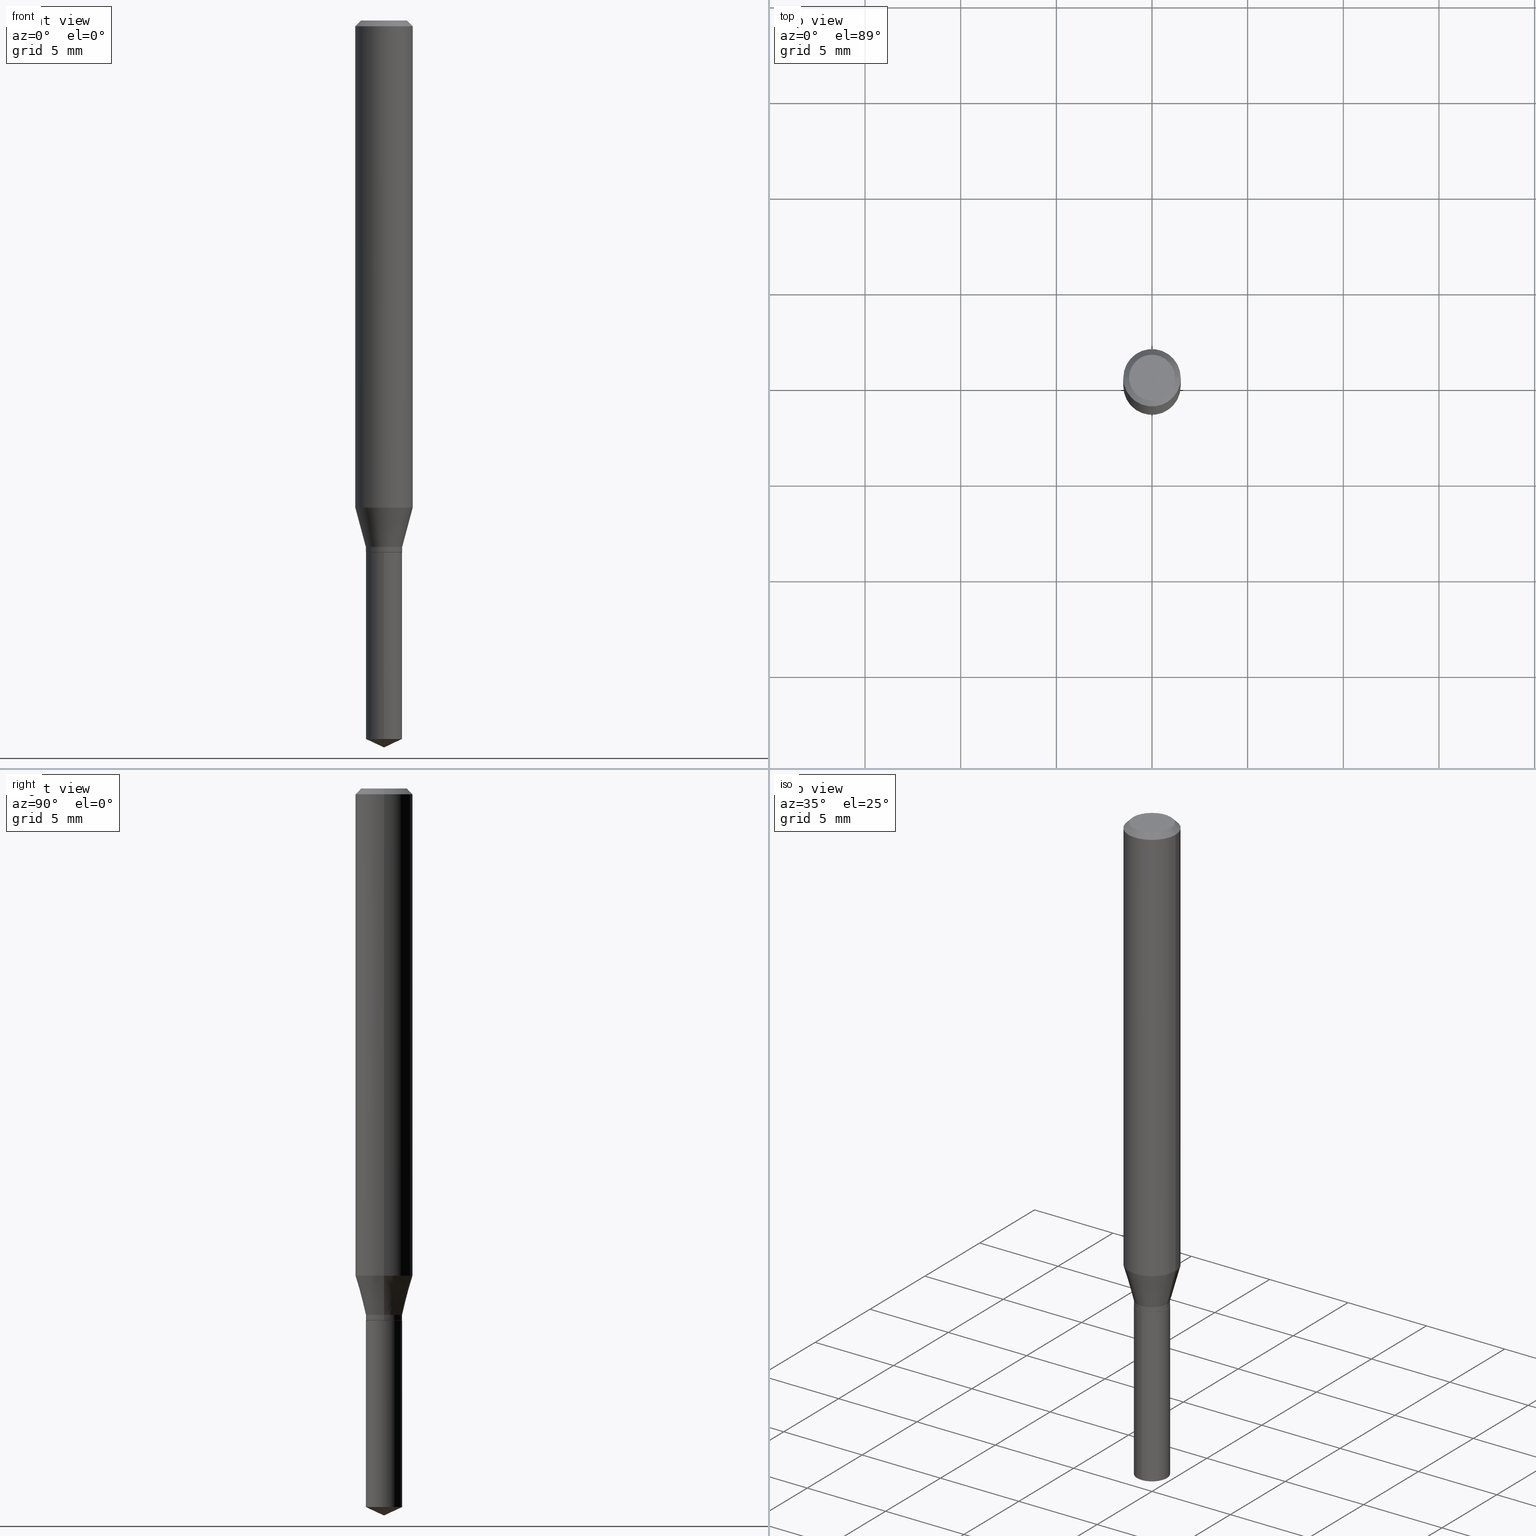
[diagram: canonical four-view strip — front | top / right | iso, engineering-drawing reading convention]
A machine part, canonical four-view strip (front | top / right | iso — engineering-drawing reading convention). The complete STEP part file that produces these views, byte-faithful:
ISO-10303-21;
HEADER;
FILE_DESCRIPTION (( 'STEP AP203' ),
    '1' );
FILE_NAME ('08182.STEP',
    '2024-04-24T13:43:57',
    ( '' ),
    ( '' ),
    'SwSTEP 2.0',
    'SolidWorks 2023',
    '' );
FILE_SCHEMA (( 'CONFIG_CONTROL_DESIGN' ));
ENDSEC;

DATA;
#1 = ORIENTED_EDGE ( 'NONE', *, *, #441, .F. ) ;
#2 = CONICAL_SURFACE ( 'NONE', #283, 84.42940631927567097, 1.134464013796322002 ) ;
#3 = CIRCLE ( 'NONE', #302, 0.03739999999999995411 ) ;
#4 = DIRECTION ( 'NONE',  ( -2.445358326776455510E-29, 3.491639551644474585E-15, 1.000000000000000000 ) ) ;
#5 = CARTESIAN_POINT ( 'NONE',  ( 2.888098660104663328E-31, -4.123439461173779030E-17, -0.01181000000000006871 ) ) ;
#6 = FACE_OUTER_BOUND ( 'NONE', #238, .T. ) ;
#7 = ORIENTED_EDGE ( 'NONE', *, *, #425, .F. ) ;
#8 = CARTESIAN_POINT ( 'NONE',  ( 0.000000000000000000, 0.000000000000000000, 0.000000000000000000 ) ) ;
#9 = CARTESIAN_POINT ( 'NONE',  ( 0.03739999999999995411, -4.043484538514245916E-15, -1.083299999999999930 ) ) ;
#10 = LINE ( 'NONE', #165, #34 ) ;
#11 = CARTESIAN_POINT ( 'NONE',  ( 2.676565608369631794E-29, -3.821426325363822773E-15, -1.094499999999999806 ) ) ;
#12 = FACE_OUTER_BOUND ( 'NONE', #478, .T. ) ;
#13 = PRODUCT ( '08182', '08182', '', ( #357 ) ) ;
#14 = CARTESIAN_POINT ( 'NONE',  ( 2.657429831743042113E-16, 0.03739999999999617936, -1.094500000000000028 ) ) ;
#15 = DIRECTION ( 'NONE',  ( -2.445468806185136597E-29, 3.491481338843145583E-15, 1.000000000000000000 ) ) ;
#16 = AXIS2_PLACEMENT_3D ( 'NONE', #272, #163, #383 ) ;
#17 = CONICAL_SURFACE ( 'NONE', #396, 0.03690000000000000224, 0.7853981633973757814 ) ;
#18 = EDGE_CURVE ( 'NONE', #371, #471, #290, .T. ) ;
#19 = MANIFOLD_SOLID_BREP ( 'Body-Move/Copy2[1]', #126 ) ;
#20 = CARTESIAN_POINT ( 'NONE',  ( -0.03739999999999996799, -3.535258176357312608E-15, -1.093999999999999861 ) ) ;
#21 = DIRECTION ( 'NONE',  ( -1.000000000000000000, 6.982962677686265922E-15, -4.876176775795935793E-29 ) ) ;
#22 = ADVANCED_FACE ( 'NONE', ( #12 ), #274, .T. ) ;
#23 = CONICAL_SURFACE ( 'NONE', #294, 0.03739999999999995411, 0.2617993877991501295 ) ;
#24 = PRODUCT_DEFINITION_FORMATION_WITH_SPECIFIED_SOURCE ( 'ANY', '', #13, .NOT_KNOWN. ) ;
#25 = CARTESIAN_POINT ( 'NONE',  ( 3.658500592690254185E-29, -5.223841933215297403E-15, -1.496099999999999985 ) ) ;
#26 = PERSON_AND_ORGANIZATION_ROLE ( 'creator' ) ;
#27 = ADVANCED_FACE ( 'NONE', ( #417 ), #85, .F. ) ;
#28 = ORIENTED_EDGE ( 'NONE', *, *, #271, .F. ) ;
#29 = AXIS2_PLACEMENT_3D ( 'NONE', #457, #460, #100 ) ;
#30 = VECTOR ( 'NONE', #178, 39.37007874015748143 ) ;
#31 = ORIENTED_EDGE ( 'NONE', *, *, #461, .T. ) ;
#32 = EDGE_CURVE ( 'NONE', #241, #113, #482, .T. ) ;
#33 = APPROVAL_ROLE ( '' ) ;
#34 = VECTOR ( 'NONE', #125, 39.37007874015747433 ) ;
#35 = CIRCLE ( 'NONE', #261, 0.05904999999999999832 ) ;
#36 = CALENDAR_DATE ( 2024, 24, 4 ) ;
#37 = ORIENTED_EDGE ( 'NONE', *, *, #18, .T. ) ;
#38 = CARTESIAN_POINT ( 'NONE',  ( -0.05905000000000013016, -3.080638397409715061E-15, -1.002501100016133240 ) ) ;
#39 = DIRECTION ( 'NONE',  ( 2.445358326776454949E-29, -3.491639551644474585E-15, -1.000000000000000000 ) ) ;
#40 = DIRECTION ( 'NONE',  ( 1.000000000000000000, -6.982962677686265133E-15, 0.000000000000000000 ) ) ;
#41 = CARTESIAN_POINT ( 'NONE',  ( 3.658744552762151624E-29, -5.223495605393188568E-15, -1.496099999999999985 ) ) ;
#42 = AXIS2_PLACEMENT_3D ( 'NONE', #116, #273, #412 ) ;
#43 = DIRECTION ( 'NONE',  ( -2.445468806185136597E-29, 3.491481338843145583E-15, 1.000000000000000000 ) ) ;
#44 = ORIENTED_EDGE ( 'NONE', *, *, #32, .T. ) ;
#45 = DIRECTION ( 'NONE',  ( -2.445358326776455510E-29, 3.491639551644474585E-15, 1.000000000000000000 ) ) ;
#46 = DIRECTION ( 'NONE',  ( -2.445468806185136597E-29, 3.491481338843145583E-15, 1.000000000000000000 ) ) ;
#47 = CARTESIAN_POINT ( 'NONE',  ( 2.676565608369631794E-29, -3.821426325363822773E-15, -1.094499999999999806 ) ) ;
#48 = LINE ( 'NONE', #458, #439 ) ;
#49 = EDGE_LOOP ( 'NONE', ( #75, #472, #61, #118 ) ) ;
#50 = ORIENTED_EDGE ( 'NONE', *, *, #64, .T. ) ;
#51 = CC_DESIGN_DATE_AND_TIME_ASSIGNMENT ( #183, #367, ( #420 ) ) ;
#52 = DIRECTION ( 'NONE',  ( -6.982962677686265922E-15, -1.000000000000000000, 3.652203200085913145E-15 ) ) ;
#53 = PRODUCT_DEFINITION_SHAPE ( 'NONE', 'NONE',  #77 ) ;
#54 = DIRECTION ( 'NONE',  ( -2.445468806185136597E-29, 3.491481338843145583E-15, 1.000000000000000000 ) ) ;
#55 = AXIS2_PLACEMENT_3D ( 'NONE', #210, #46, #235 ) ;
#56 = ORIENTED_EDGE ( 'NONE', *, *, #262, .F. ) ;
#57 = CIRCLE ( 'NONE', #158, 0.03740000000000000269 ) ;
#58 = LINE ( 'NONE', #399, #30 ) ;
#59 = DIRECTION ( 'NONE',  ( 0.000000000000000000, 0.000000000000000000, 1.000000000000000000 ) ) ;
#60 = PLANE ( 'NONE',  #67 ) ;
#61 = ORIENTED_EDGE ( 'NONE', *, *, #430, .F. ) ;
#62 = FACE_OUTER_BOUND ( 'NONE', #442, .T. ) ;
#63 = CARTESIAN_POINT ( 'NONE',  ( 0.04724000000000000421, -3.852183633974369345E-16, -3.380025165621689721E-19 ) ) ;
#64 = EDGE_CURVE ( 'NONE', #246, #375, #121, .T. ) ;
#65 = ORIENTED_EDGE ( 'NONE', *, *, #69, .T. ) ;
#66 = ORIENTED_EDGE ( 'NONE', *, *, #405, .F. ) ;
#67 = AXIS2_PLACEMENT_3D ( 'NONE', #92, #103, #21 ) ;
#68 = PERSON_AND_ORGANIZATION_ROLE ( 'creator' ) ;
#69 = EDGE_CURVE ( 'NONE', #448, #185, #427, .T. ) ;
#70 = FACE_OUTER_BOUND ( 'NONE', #157, .T. ) ;
#71 = PERSON_AND_ORGANIZATION_ROLE ( 'design_owner' ) ;
#72 = ORIENTED_EDGE ( 'NONE', *, *, #87, .F. ) ;
#73 = LOCAL_TIME ( 9, 43, 57.00000000000000000, #331 ) ;
#74 = EDGE_CURVE ( 'NONE', #308, #394, #253, .T. ) ;
#75 = ORIENTED_EDGE ( 'NONE', *, *, #177, .T. ) ;
#76 = DIRECTION ( 'NONE',  ( -1.000000000000000000, 6.982962677686266711E-15, 0.000000000000000000 ) ) ;
#77 = PRODUCT_DEFINITION ( 'UNKNOWN', '', #24, #168 ) ;
#78 = CYLINDRICAL_SURFACE ( 'NONE', #364, 0.03739999999999996105 ) ;
#79 = DIRECTION ( 'NONE',  ( -2.445358326776455790E-29, 3.491639551644474585E-15, 1.000000000000000000 ) ) ;
#80 = CARTESIAN_POINT ( 'NONE',  ( -2.611628041454301126E-16, -0.03740000000000516522, -1.478660093585003388 ) ) ;
#81 = CARTESIAN_POINT ( 'NONE',  ( 0.03739999999999995411, -4.043484538514245916E-15, -1.083299999999999930 ) ) ;
#82 = VECTOR ( 'NONE', #409, 39.37007874015748143 ) ;
#83 = CIRCLE ( 'NONE', #446, 0.03690000000000000224 ) ;
#84 = CARTESIAN_POINT ( 'NONE',  ( 2.649176357740358198E-29, -3.782321734368779516E-15, -1.083299999999999930 ) ) ;
#85 = PLANE ( 'NONE',  #189 ) ;
#86 = CARTESIAN_POINT ( 'NONE',  ( -0.04724000000000000421, 3.504923541997677355E-16, -3.380025165670481712E-19 ) ) ;
#87 = EDGE_CURVE ( 'NONE', #466, #469, #236, .T. ) ;
#88 = DIRECTION ( 'NONE',  ( 1.000000000000000000, -6.982962677686261189E-15, 0.000000000000000000 ) ) ;
#89 = DIRECTION ( 'NONE',  ( -2.445468806185136597E-29, 3.491481338843145583E-15, 1.000000000000000000 ) ) ;
#90 = CARTESIAN_POINT ( 'NONE',  ( 2.676565608369631794E-29, -3.821426325363822773E-15, -1.094499999999999806 ) ) ;
#91 = VERTEX_POINT ( 'NONE', #81 ) ;
#92 = CARTESIAN_POINT ( 'NONE',  ( 4.132873053354867254E-48, -5.900647395337818946E-34, -1.690012582823346072E-19 ) ) ;
#93 = VECTOR ( 'NONE', #200, 39.37007874015748143 ) ;
#94 = AXIS2_PLACEMENT_3D ( 'NONE', #392, #59, #217 ) ;
#95 = ORIENTED_EDGE ( 'NONE', *, *, #366, .F. ) ;
#96 = CARTESIAN_POINT ( 'NONE',  ( 0.05905000000000013016, -3.912557828993430263E-15, -1.002501100016133240 ) ) ;
#97 = ORIENTED_EDGE ( 'NONE', *, *, #64, .F. ) ;
#98 = ADVANCED_FACE ( 'NONE', ( #381 ), #2, .T. ) ;
#99 = CARTESIAN_POINT ( 'NONE',  ( 2.888098660104663328E-31, -4.123439461173779030E-17, -0.01181000000000006871 ) ) ;
#100 = DIRECTION ( 'NONE',  ( 1.000000000000000000, -6.982962677686270655E-15, 0.000000000000000000 ) ) ;
#101 = VECTOR ( 'NONE', #452, 39.37007874015748143 ) ;
#102 = ADVANCED_FACE ( 'NONE', ( #403 ), #344, .F. ) ;
#103 = DIRECTION ( 'NONE',  ( 2.438088387897960049E-29, -3.491481338843145188E-15, -1.000000000000000000 ) ) ;
#104 = ORIENTED_EDGE ( 'NONE', *, *, #360, .F. ) ;
#105 = PERSON_AND_ORGANIZATION ( #411, #199 ) ;
#106 = ORIENTED_EDGE ( 'NONE', *, *, #313, .F. ) ;
#107 = PERSON_AND_ORGANIZATION ( #411, #199 ) ;
#108 = ADVANCED_FACE ( 'NONE', ( #204 ), #211, .T. ) ;
#109 = DIRECTION ( 'NONE',  ( -6.982962677686267499E-15, -1.000000000000000000, 3.520397390770398255E-15 ) ) ;
#110 = APPROVAL_PERSON_ORGANIZATION ( #325, #323, #33 ) ;
#111 = DIRECTION ( 'NONE',  ( -2.445468806185136597E-29, 3.491481338843145583E-15, 1.000000000000000000 ) ) ;
#112 = APPROVAL_STATUS ( 'not_yet_approved' ) ;
#113 = VERTEX_POINT ( 'NONE', #244 ) ;
#114 = AXIS2_PLACEMENT_3D ( 'NONE', #8, #334, #490 ) ;
#115 = ORIENTED_EDGE ( 'NONE', *, *, #425, .T. ) ;
#116 = CARTESIAN_POINT ( 'NONE',  ( 3.615974692032942336E-29, -5.162774902288663749E-15, -1.478660093585003388 ) ) ;
#117 = FACE_OUTER_BOUND ( 'NONE', #160, .T. ) ;
#118 = ORIENTED_EDGE ( 'NONE', *, *, #461, .F. ) ;
#119 = DIRECTION ( 'NONE',  ( -2.445468806185136597E-29, 3.491481338843145583E-15, 1.000000000000000000 ) ) ;
#120 = FACE_OUTER_BOUND ( 'NONE', #474, .T. ) ;
#121 = LINE ( 'NONE', #413, #355 ) ;
#122 = EDGE_CURVE ( 'NONE', #139, #371, #10, .T. ) ;
#123 = CYLINDRICAL_SURFACE ( 'NONE', #329, 0.05905000000000006771 ) ;
#124 = EDGE_LOOP ( 'NONE', ( #182, #320 ) ) ;
#125 = DIRECTION ( 'NONE',  ( -0.2588190451025214611, 5.211531920934551042E-15, 0.9659258262890682012 ) ) ;
#126 = CLOSED_SHELL ( 'NONE', ( #362, #98, #214, #22, #27 ) ) ;
#127 = AXIS2_PLACEMENT_3D ( 'NONE', #424, #237, #205 ) ;
#128 = CARTESIAN_POINT ( 'NONE',  ( 8.265746106709734507E-48, -1.180129479067563789E-33, -3.380025165646692144E-19 ) ) ;
#129 = DIRECTION ( 'NONE',  ( -6.982962677686265922E-15, -1.000000000000000000, 0.000000000000000000 ) ) ;
#130 = CARTESIAN_POINT ( 'NONE',  ( 0.000000000000000000, 0.000000000000000000, 0.000000000000000000 ) ) ;
#131 = CARTESIAN_POINT ( 'NONE',  ( 2.676565608369631794E-29, -3.821426325363822773E-15, -1.094499999999999806 ) ) ;
#132 = CC_DESIGN_PERSON_AND_ORGANIZATION_ASSIGNMENT ( #153, #68, ( #77 ) ) ;
#133 = CIRCLE ( 'NONE', #464, 0.03740000000000000269 ) ;
#134 = ADVANCED_BREP_SHAPE_REPRESENTATION ( '08182', ( #19, #169, #94 ), #340 ) ;
#135 = DIRECTION ( 'NONE',  ( -2.445468806185136877E-29, 3.491481338843145188E-15, 1.000000000000000000 ) ) ;
#136 = ORIENTED_EDGE ( 'NONE', *, *, #345, .T. ) ;
#137 = CARTESIAN_POINT ( 'NONE',  ( -0.05905000000000006771, 4.195754854663396409E-16, -2.904631170795525045E-30 ) ) ;
#138 = ADVANCED_FACE ( 'NONE', ( #380 ), #176, .T. ) ;
#139 = VERTEX_POINT ( 'NONE', #174 ) ;
#140 = DIRECTION ( 'NONE',  ( 1.000000000000000000, -6.982962677686261189E-15, 0.000000000000000000 ) ) ;
#141 = CONICAL_SURFACE ( 'NONE', #250, 84.42940631927567097, 1.134464013796322002 ) ;
#142 = AXIS2_PLACEMENT_3D ( 'NONE', #128, #155, #447 ) ;
#143 = DATE_AND_TIME ( #223, #171 ) ;
#144 = VERTEX_POINT ( 'NONE', #207 ) ;
#145 = ORIENTED_EDGE ( 'NONE', *, *, #345, .F. ) ;
#146 = APPROVAL_DATE_TIME ( #298, #372 ) ;
#147 = CONICAL_SURFACE ( 'NONE', #148, 0.05904999999999999832, 0.7853981633974452814 ) ;
#148 = AXIS2_PLACEMENT_3D ( 'NONE', #208, #422, #314 ) ;
#149 = PERSON_AND_ORGANIZATION_ROLE ( 'design_supplier' ) ;
#150 = ORIENTED_EDGE ( 'NONE', *, *, #177, .F. ) ;
#151 = APPLICATION_CONTEXT ( 'configuration controlled 3d designs of mechanical parts and assemblies' ) ;
#152 = ORIENTED_EDGE ( 'NONE', *, *, #259, .F. ) ;
#153 = PERSON_AND_ORGANIZATION ( #411, #199 ) ;
#154 = ORIENTED_EDGE ( 'NONE', *, *, #430, .T. ) ;
#155 = DIRECTION ( 'NONE',  ( -2.445468806185136597E-29, 3.491481338843145583E-15, 1.000000000000000000 ) ) ;
#156 = CLOSED_SHELL ( 'NONE', ( #108, #263, #138, #284, #227, #356, #327, #352, #295, #481, #102, #463 ) ) ;
#157 = EDGE_LOOP ( 'NONE', ( #202, #401, #154, #1 ) ) ;
#158 = AXIS2_PLACEMENT_3D ( 'NONE', #376, #201, #346 ) ;
#159 = CARTESIAN_POINT ( 'NONE',  ( 2.657429831743136776E-16, 0.03739999999999617936, -1.094500000000000028 ) ) ;
#160 = EDGE_LOOP ( 'NONE', ( #436, #181, #7, #145 ) ) ;
#161 = LINE ( 'NONE', #9, #300 ) ;
#162 = FACE_OUTER_BOUND ( 'NONE', #322, .T. ) ;
#163 = DIRECTION ( 'NONE',  ( -2.445468806185136597E-29, 3.491481338843145583E-15, 1.000000000000000000 ) ) ;
#164 = DIRECTION ( 'NONE',  ( 0.2588190451025214611, 1.565188264969621573E-15, 0.9659258262890682012 ) ) ;
#165 = CARTESIAN_POINT ( 'NONE',  ( -0.03739999999999995411, -3.516578751194502126E-15, -1.083299999999999930 ) ) ;
#166 = DIRECTION ( 'NONE',  ( 1.000000000000000000, -6.982962677686266711E-15, 4.876176775795936353E-29 ) ) ;
#167 = DIRECTION ( 'NONE',  ( -2.445358326776455510E-29, 3.491639551644474585E-15, 1.000000000000000000 ) ) ;
#168 = DESIGN_CONTEXT ( 'detailed design', #151, 'design' ) ;
#169 = MANIFOLD_SOLID_BREP ( 'Body-Move/Copy2[2]', #156 ) ;
#170 = CIRCLE ( 'NONE', #267, 0.03740000000000000269 ) ;
#171 = LOCAL_TIME ( 9, 43, 57.00000000000000000, #440 ) ;
#172 = CARTESIAN_POINT ( 'NONE',  ( 2.675342873966538993E-29, -3.819680584694400481E-15, -1.093999999999999861 ) ) ;
#173 = ORIENTED_EDGE ( 'NONE', *, *, #271, .T. ) ;
#174 = CARTESIAN_POINT ( 'NONE',  ( -0.03739999999999995411, -3.535258176357312608E-15, -1.083299999999999930 ) ) ;
#175 = CARTESIAN_POINT ( 'NONE',  ( -0.03690000000000000224, -3.556586828694234292E-15, -1.094499999999999806 ) ) ;
#176 = CYLINDRICAL_SURFACE ( 'NONE', #55, 0.05905000000000006771 ) ;
#177 = EDGE_CURVE ( 'NONE', #471, #371, #324, .T. ) ;
#178 = DIRECTION ( 'NONE',  ( -2.445468806185136877E-29, 3.491481338843145188E-15, 1.000000000000000000 ) ) ;
#179 = ORIENTED_EDGE ( 'NONE', *, *, #360, .T. ) ;
#180 = EDGE_LOOP ( 'NONE', ( #66, #37, #31, #365 ) ) ;
#181 = ORIENTED_EDGE ( 'NONE', *, *, #397, .T. ) ;
#182 = ORIENTED_EDGE ( 'NONE', *, *, #74, .F. ) ;
#183 = DATE_AND_TIME ( #400, #73 ) ;
#184 = AXIS2_PLACEMENT_3D ( 'NONE', #449, #119, #415 ) ;
#185 = VERTEX_POINT ( 'NONE', #86 ) ;
#186 = PERSON_AND_ORGANIZATION_ROLE ( 'classification_officer' ) ;
#187 = LINE ( 'NONE', #14, #317 ) ;
#188 = CARTESIAN_POINT ( 'NONE',  ( -9.261532836068574158E-28, 1.322424553111868898E-13, 37.87397874015748300 ) ) ;
#189 = AXIS2_PLACEMENT_3D ( 'NONE', #233, #39, #338 ) ;
#190 = VECTOR ( 'NONE', #398, 39.37007874015748143 ) ;
#191 = APPROVAL_DATE_TIME ( #404, #304 ) ;
#192 = EDGE_CURVE ( 'NONE', #91, #471, #161, .T. ) ;
#193 = ORIENTED_EDGE ( 'NONE', *, *, #441, .T. ) ;
#194 = CARTESIAN_POINT ( 'NONE',  ( 3.615974692032942336E-29, -5.162774902288663749E-15, -1.478660093585003388 ) ) ;
#195 = CARTESIAN_POINT ( 'NONE',  ( -0.03690000000000000224, -3.559236055868345493E-15, -1.094499999999999806 ) ) ;
#196 = EDGE_LOOP ( 'NONE', ( #419, #257, #193, #44 ) ) ;
#197 = AXIS2_PLACEMENT_3D ( 'NONE', #382, #270, #76 ) ;
#198 = CC_DESIGN_PERSON_AND_ORGANIZATION_ASSIGNMENT ( #107, #149, ( #24 ) ) ;
#199 = ORGANIZATION ( 'UNSPECIFIED', 'UNSPECIFIED', '' ) ;
#200 = DIRECTION ( 'NONE',  ( 6.439704144417047708E-15, 0.9063077870366545996, 0.4226182617406892827 ) ) ;
#201 = DIRECTION ( 'NONE',  ( -2.445358326776455510E-29, 3.491639551644474585E-15, 1.000000000000000000 ) ) ;
#202 = ORIENTED_EDGE ( 'NONE', *, *, #69, .F. ) ;
#203 = CYLINDRICAL_SURFACE ( 'NONE', #114, 0.03739999999999996105 ) ;
#204 = FACE_OUTER_BOUND ( 'NONE', #316, .T. ) ;
#205 = DIRECTION ( 'NONE',  ( -6.982962677686265922E-15, -1.000000000000000000, 3.652203200085913145E-15 ) ) ;
#206 = ORIENTED_EDGE ( 'NONE', *, *, #216, .F. ) ;
#207 = CARTESIAN_POINT ( 'NONE',  ( 0.03739999999999996105, -4.080843388839866881E-15, -1.093999999999999861 ) ) ;
#208 = CARTESIAN_POINT ( 'NONE',  ( 2.888098660104663328E-31, -4.123439461173779030E-17, -0.01181000000000006871 ) ) ;
#209 = ORIENTED_EDGE ( 'NONE', *, *, #87, .T. ) ;
#210 = CARTESIAN_POINT ( 'NONE',  ( 0.000000000000000000, 0.000000000000000000, 0.000000000000000000 ) ) ;
#211 = CONICAL_SURFACE ( 'NONE', #348, 0.03690000000000000224, 0.7853981633973757814 ) ;
#212 = LOCAL_TIME ( 9, 43, 57.00000000000000000, #363 ) ;
#213 = DIRECTION ( 'NONE',  ( -2.445468806185136597E-29, 3.491481338843145583E-15, 1.000000000000000000 ) ) ;
#214 = ADVANCED_FACE ( 'NONE', ( #309 ), #141, .T. ) ;
#215 = LENGTH_MEASURE_WITH_UNIT ( LENGTH_MEASURE( 0.02539999999999999897 ), #254 );
#216 = EDGE_CURVE ( 'NONE', #469, #285, #187, .T. ) ;
#217 = DIRECTION ( 'NONE',  ( 1.000000000000000000, 0.000000000000000000, 0.000000000000000000 ) ) ;
#218 = EDGE_CURVE ( 'NONE', #469, #246, #170, .T. ) ;
#219 = FACE_OUTER_BOUND ( 'NONE', #330, .T. ) ;
#220 = VECTOR ( 'NONE', #135, 39.37007874015748143 ) ;
#221 = DIRECTION ( 'NONE',  ( -2.445468806185136597E-29, 3.491481338843145583E-15, 1.000000000000000000 ) ) ;
#222 = PERSON_AND_ORGANIZATION ( #411, #199 ) ;
#223 = CALENDAR_DATE ( 2024, 24, 4 ) ;
#224 = AXIS2_PLACEMENT_3D ( 'NONE', #488, #111, #297 ) ;
#225 = ORIENTED_EDGE ( 'NONE', *, *, #192, .F. ) ;
#226 = SECURITY_CLASSIFICATION_LEVEL ( 'unclassified' ) ;
#227 = ADVANCED_FACE ( 'NONE', ( #117 ), #203, .T. ) ;
#228 = COORDINATED_UNIVERSAL_TIME_OFFSET ( 5, 0, .BEHIND. ) ;
#229 = CC_DESIGN_PERSON_AND_ORGANIZATION_ASSIGNMENT ( #435, #71, ( #13 ) ) ;
#230 = PERSON_AND_ORGANIZATION ( #411, #199 ) ;
#231 = ORIENTED_EDGE ( 'NONE', *, *, #192, .T. ) ;
#232 = DIRECTION ( 'NONE',  ( -2.445468806185136877E-29, 3.491481338843145188E-15, 1.000000000000000000 ) ) ;
#233 = CARTESIAN_POINT ( 'NONE',  ( 2.676565608369631794E-29, -3.821426325363822773E-15, -1.094499999999999806 ) ) ;
#234 = CC_DESIGN_PERSON_AND_ORGANIZATION_ASSIGNMENT ( #105, #26, ( #24 ) ) ;
#235 = DIRECTION ( 'NONE',  ( 1.000000000000000000, -6.982962677686266711E-15, 4.876176775795936353E-29 ) ) ;
#236 = LINE ( 'NONE', #41, #93 ) ;
#237 = DIRECTION ( 'NONE',  ( -2.445358326776455510E-29, 3.491639551644474585E-15, 1.000000000000000000 ) ) ;
#238 = EDGE_LOOP ( 'NONE', ( #423, #386, #136, #56 ) ) ;
#239 = VECTOR ( 'NONE', #350, 39.37007874015748143 ) ;
#240 = LINE ( 'NONE', #195, #251 ) ;
#241 = VERTEX_POINT ( 'NONE', #301 ) ;
#242 = UNCERTAINTY_MEASURE_WITH_UNIT (LENGTH_MEASURE( 1.000000000000000082E-05 ), #256, 'distance_accuracy_value', 'NONE');
#243 = CARTESIAN_POINT ( 'NONE',  ( 2.451585168255739892E-29, -3.500213882876055342E-15, -1.002501100016133240 ) ) ;
#244 = CARTESIAN_POINT ( 'NONE',  ( 0.05904999999999999832, -4.535783407291118600E-16, -0.01181000000000006871 ) ) ;
#245 = CARTESIAN_POINT ( 'NONE',  ( 0.03690000000000000224, -4.079097648170445378E-15, -1.094499999999999806 ) ) ;
#246 = VERTEX_POINT ( 'NONE', #80 ) ;
#247 = PRODUCT_RELATED_PRODUCT_CATEGORY ( 'detail', '', ( #13 ) ) ;
#248 = CARTESIAN_POINT ( 'NONE',  ( 0.05904999999999999832, -4.463468013801466955E-16, -0.01181000000000006871 ) ) ;
#249 = ORIENTED_EDGE ( 'NONE', *, *, #262, .T. ) ;
#250 = AXIS2_PLACEMENT_3D ( 'NONE', #384, #480, #109 ) ;
#251 = VECTOR ( 'NONE', #337, 39.37007874015748143 ) ;
#252 = CC_DESIGN_PERSON_AND_ORGANIZATION_ASSIGNMENT ( #222, #186, ( #420 ) ) ;
#253 = CIRCLE ( 'NONE', #184, 0.03690000000000000224 ) ;
#254 =( LENGTH_UNIT ( ) NAMED_UNIT ( * ) SI_UNIT ( $, .METRE. ) );
#255 = AXIS2_PLACEMENT_3D ( 'NONE', #347, #305, #374 ) ;
#256 =( CONVERSION_BASED_UNIT ( 'INCH', #215 ) LENGTH_UNIT ( ) NAMED_UNIT ( #387 ) );
#257 = ORIENTED_EDGE ( 'NONE', *, *, #326, .F. ) ;
#258 = SHAPE_DEFINITION_REPRESENTATION ( #53, #134 ) ;
#259 = EDGE_CURVE ( 'NONE', #431, #144, #389, .T. ) ;
#260 = CIRCLE ( 'NONE', #377, 0.03739999999999996105 ) ;
#261 = AXIS2_PLACEMENT_3D ( 'NONE', #99, #470, #351 ) ;
#262 = EDGE_CURVE ( 'NONE', #139, #91, #445, .T. ) ;
#263 = ADVANCED_FACE ( 'NONE', ( #70 ), #402, .T. ) ;
#264 = DIRECTION ( 'NONE',  ( -2.445358326776455510E-29, 3.491639551644474585E-15, 1.000000000000000000 ) ) ;
#265 = COORDINATED_UNIVERSAL_TIME_OFFSET ( 5, 0, .BEHIND. ) ;
#266 = APPROVAL_ROLE ( '' ) ;
#267 = AXIS2_PLACEMENT_3D ( 'NONE', #194, #45, #129 ) ;
#268 = ORIENTED_EDGE ( 'NONE', *, *, #218, .T. ) ;
#269 = FACE_OUTER_BOUND ( 'NONE', #358, .T. ) ;
#270 = DIRECTION ( 'NONE',  ( 2.445468806185136597E-29, -3.491481338843145583E-15, -1.000000000000000000 ) ) ;
#271 = EDGE_CURVE ( 'NONE', #375, #285, #133, .T. ) ;
#272 = CARTESIAN_POINT ( 'NONE',  ( 2.451585168255739892E-29, -3.500213882876055342E-15, -1.002501100016133240 ) ) ;
#273 = DIRECTION ( 'NONE',  ( -2.445358326776455510E-29, 3.491639551644474585E-15, 1.000000000000000000 ) ) ;
#274 = CYLINDRICAL_SURFACE ( 'NONE', #395, 0.03740000000000000269 ) ;
#275 = DIRECTION ( 'NONE',  ( 1.000000000000000000, -6.982962677686269077E-15, 0.000000000000000000 ) ) ;
#276 = CIRCLE ( 'NONE', #42, 0.03740000000000000269 ) ;
#277 = DIRECTION ( 'NONE',  ( -2.445468806185136597E-29, 3.491481338843145583E-15, 1.000000000000000000 ) ) ;
#278 = FACE_OUTER_BOUND ( 'NONE', #180, .T. ) ;
#279 = CARTESIAN_POINT ( 'NONE',  ( 2.675342873966538993E-29, -3.819680584694400481E-15, -1.093999999999999861 ) ) ;
#280 = EDGE_CURVE ( 'NONE', #144, #431, #260, .T. ) ;
#281 = DIRECTION ( 'NONE',  ( 1.000000000000000000, -6.982962677686265133E-15, 4.876176775795935232E-29 ) ) ;
#282 = CARTESIAN_POINT ( 'NONE',  ( 3.658500592690254185E-29, -5.223841933215297403E-15, -1.496099999999999985 ) ) ;
#283 = AXIS2_PLACEMENT_3D ( 'NONE', #188, #264, #296 ) ;
#284 = ADVANCED_FACE ( 'NONE', ( #162 ), #23, .T. ) ;
#285 = VERTEX_POINT ( 'NONE', #159 ) ;
#286 = LINE ( 'NONE', #25, #190 ) ;
#287 = ORIENTED_EDGE ( 'NONE', *, *, #366, .T. ) ;
#288 =( NAMED_UNIT ( * ) PLANE_ANGLE_UNIT ( ) SI_UNIT ( $, .RADIAN. ) );
#289 = ORIENTED_EDGE ( 'NONE', *, *, #18, .F. ) ;
#290 = CIRCLE ( 'NONE', #16, 0.05905000000000013016 ) ;
#291 = LOCAL_TIME ( 9, 43, 57.00000000000000000, #265 ) ;
#292 = CALENDAR_DATE ( 2024, 24, 4 ) ;
#293 = EDGE_LOOP ( 'NONE', ( #173, #287 ) ) ;
#294 = AXIS2_PLACEMENT_3D ( 'NONE', #84, #15, #416 ) ;
#295 = ADVANCED_FACE ( 'NONE', ( #307 ), #147, .T. ) ;
#296 = DIRECTION ( 'NONE',  ( -6.982962677686267499E-15, -1.000000000000000000, 3.520397390770398255E-15 ) ) ;
#297 = DIRECTION ( 'NONE',  ( 1.000000000000000000, -6.982962677686266711E-15, 4.876185090822587894E-29 ) ) ;
#298 = DATE_AND_TIME ( #36, #370 ) ;
#299 = CARTESIAN_POINT ( 'NONE',  ( 0.000000000000000000, 0.000000000000000000, 0.000000000000000000 ) ) ;
#300 = VECTOR ( 'NONE', #164, 39.37007874015747433 ) ;
#301 = CARTESIAN_POINT ( 'NONE',  ( -0.05904999999999999832, -1.351148653277556254E-15, -0.01181000000000006871 ) ) ;
#302 = AXIS2_PLACEMENT_3D ( 'NONE', #473, #221, #319 ) ;
#303 = ORIENTED_EDGE ( 'NONE', *, *, #313, .T. ) ;
#304 = APPROVAL ( #112, 'UNSPECIFIED' ) ;
#305 = DIRECTION ( 'NONE',  ( -2.445468806185136597E-29, 3.491481338843145583E-15, 1.000000000000000000 ) ) ;
#306 = DIRECTION ( 'NONE',  ( -2.445468806185136597E-29, 3.491481338843145583E-15, 1.000000000000000000 ) ) ;
#307 = FACE_OUTER_BOUND ( 'NONE', #196, .T. ) ;
#308 = VERTEX_POINT ( 'NONE', #245 ) ;
#309 = FACE_OUTER_BOUND ( 'NONE', #354, .T. ) ;
#310 = CARTESIAN_POINT ( 'NONE',  ( 2.676565608369631794E-29, -3.821426325363822773E-15, -1.094499999999999806 ) ) ;
#311 = LINE ( 'NONE', #455, #82 ) ;
#312 = DIRECTION ( 'NONE',  ( -6.982962677686265922E-15, -1.000000000000000000, 3.652203200085913145E-15 ) ) ;
#313 = EDGE_CURVE ( 'NONE', #308, #144, #311, .T. ) ;
#314 = DIRECTION ( 'NONE',  ( -1.000000000000000000, 6.982962677686266711E-15, 0.000000000000000000 ) ) ;
#315 = DIRECTION ( 'NONE',  ( -0.7071067811865453523, 2.468850131082234184E-15, -0.7071067811865496822 ) ) ;
#316 = EDGE_LOOP ( 'NONE', ( #333, #373, #343, #106 ) ) ;
#317 = VECTOR ( 'NONE', #378, 39.37007874015748143 ) ;
#318 = VECTOR ( 'NONE', #315, 39.37007874015748143 ) ;
#319 = DIRECTION ( 'NONE',  ( 1.000000000000000000, -6.982962677686270655E-15, 0.000000000000000000 ) ) ;
#320 = ORIENTED_EDGE ( 'NONE', *, *, #369, .F. ) ;
#321 = CARTESIAN_POINT ( 'NONE',  ( 2.657429831743135790E-16, 0.03739999999999483321, -1.478660093585003388 ) ) ;
#322 = EDGE_LOOP ( 'NONE', ( #115, #468, #150, #225 ) ) ;
#323 = APPROVAL ( #443, 'UNSPECIFIED' ) ;
#324 = CIRCLE ( 'NONE', #339, 0.05905000000000013016 ) ;
#325 = PERSON_AND_ORGANIZATION ( #411, #199 ) ;
#326 = EDGE_CURVE ( 'NONE', #185, #448, #418, .T. ) ;
#327 = ADVANCED_FACE ( 'NONE', ( #120 ), #483, .T. ) ;
#328 = APPROVAL_STATUS ( 'not_yet_approved' ) ;
#329 = AXIS2_PLACEMENT_3D ( 'NONE', #299, #89, #166 ) ;
#330 = EDGE_LOOP ( 'NONE', ( #332, #65 ) ) ;
#331 = COORDINATED_UNIVERSAL_TIME_OFFSET ( 5, 0, .BEHIND. ) ;
#332 = ORIENTED_EDGE ( 'NONE', *, *, #326, .T. ) ;
#333 = ORIENTED_EDGE ( 'NONE', *, *, #74, .T. ) ;
#334 = DIRECTION ( 'NONE',  ( -2.445468806185136597E-29, 3.491481338843145583E-15, 1.000000000000000000 ) ) ;
#335 = EDGE_CURVE ( 'NONE', #448, #113, #489, .T. ) ;
#336 = ORIENTED_EDGE ( 'NONE', *, *, #218, .F. ) ;
#337 = DIRECTION ( 'NONE',  ( -0.7071067811864962804, 7.493145998870169567E-15, 0.7071067811865988650 ) ) ;
#338 = DIRECTION ( 'NONE',  ( 6.982962677686265922E-15, 1.000000000000000000, -3.491639551644474585E-15 ) ) ;
#339 = AXIS2_PLACEMENT_3D ( 'NONE', #243, #459, #40 ) ;
#340 =( GEOMETRIC_REPRESENTATION_CONTEXT ( 3 ) GLOBAL_UNCERTAINTY_ASSIGNED_CONTEXT ( ( #242 ) ) GLOBAL_UNIT_ASSIGNED_CONTEXT ( ( #256, #288, #428 ) ) REPRESENTATION_CONTEXT ( 'NONE', 'WORKASPACE' ) );
#341 = DIRECTION ( 'NONE',  ( -2.445468806185136597E-29, 3.491481338843145583E-15, 1.000000000000000000 ) ) ;
#342 = DIRECTION ( 'NONE',  ( 1.000000000000000000, -6.982962677686269077E-15, 0.000000000000000000 ) ) ;
#343 = ORIENTED_EDGE ( 'NONE', *, *, #280, .F. ) ;
#344 = PLANE ( 'NONE',  #456 ) ;
#345 = EDGE_CURVE ( 'NONE', #144, #91, #48, .T. ) ;
#346 = DIRECTION ( 'NONE',  ( -6.982962677686265922E-15, -1.000000000000000000, 3.652203200085913145E-15 ) ) ;
#347 = CARTESIAN_POINT ( 'NONE',  ( 2.649176357740358198E-29, -3.782321734368779516E-15, -1.083299999999999930 ) ) ;
#348 = AXIS2_PLACEMENT_3D ( 'NONE', #310, #277, #88 ) ;
#349 = APPROVAL_PERSON_ORGANIZATION ( #230, #372, #266 ) ;
#350 = DIRECTION ( 'NONE',  ( -2.445468806185136877E-29, 3.491481338843145188E-15, 1.000000000000000000 ) ) ;
#351 = DIRECTION ( 'NONE',  ( 1.000000000000000000, -6.982962677686266711E-15, 0.000000000000000000 ) ) ;
#352 = ADVANCED_FACE ( 'NONE', ( #278 ), #123, .T. ) ;
#353 = CARTESIAN_POINT ( 'NONE',  ( 0.05905000000000006771, -4.123439461173745257E-16, 2.879382386107503723E-30 ) ) ;
#354 = EDGE_LOOP ( 'NONE', ( #72, #438, #336 ) ) ;
#355 = VECTOR ( 'NONE', #79, 39.37007874015748143 ) ;
#356 = ADVANCED_FACE ( 'NONE', ( #6 ), #78, .T. ) ;
#357 = MECHANICAL_CONTEXT ( 'NONE', #390, 'mechanical' ) ;
#358 = EDGE_LOOP ( 'NONE', ( #179, #486, #28, #97 ) ) ;
#359 = LINE ( 'NONE', #467, #318 ) ;
#360 = EDGE_CURVE ( 'NONE', #246, #469, #276, .T. ) ;
#361 = DATE_TIME_ROLE ( 'creation_date' ) ;
#362 = ADVANCED_FACE ( 'NONE', ( #269 ), #385, .T. ) ;
#363 = COORDINATED_UNIVERSAL_TIME_OFFSET ( 5, 0, .BEHIND. ) ;
#364 = AXIS2_PLACEMENT_3D ( 'NONE', #130, #54, #281 ) ;
#365 = ORIENTED_EDGE ( 'NONE', *, *, #32, .F. ) ;
#366 = EDGE_CURVE ( 'NONE', #285, #375, #57, .T. ) ;
#367 = DATE_TIME_ROLE ( 'classification_date' ) ;
#368 = APPLICATION_PROTOCOL_DEFINITION ( 'international standard', 'config_control_design', 1994, #151 ) ;
#369 = EDGE_CURVE ( 'NONE', #394, #308, #83, .T. ) ;
#370 = LOCAL_TIME ( 9, 43, 57.00000000000000000, #228 ) ;
#371 = VERTEX_POINT ( 'NONE', #38 ) ;
#372 = APPROVAL ( #328, 'UNSPECIFIED' ) ;
#373 = ORIENTED_EDGE ( 'NONE', *, *, #391, .T. ) ;
#374 = DIRECTION ( 'NONE',  ( 1.000000000000000000, -6.982962677686270655E-15, 0.000000000000000000 ) ) ;
#375 = VERTEX_POINT ( 'NONE', #450 ) ;
#376 = CARTESIAN_POINT ( 'NONE',  ( 2.676565608369631794E-29, -3.821426325363822773E-15, -1.094499999999999806 ) ) ;
#377 = AXIS2_PLACEMENT_3D ( 'NONE', #172, #43, #342 ) ;
#378 = DIRECTION ( 'NONE',  ( -2.445358326776455790E-29, 3.491639551644474585E-15, 1.000000000000000000 ) ) ;
#379 = CC_DESIGN_SECURITY_CLASSIFICATION ( #420, ( #24 ) ) ;
#380 = FACE_OUTER_BOUND ( 'NONE', #49, .T. ) ;
#381 = FACE_OUTER_BOUND ( 'NONE', #410, .T. ) ;
#382 = CARTESIAN_POINT ( 'NONE',  ( 2.888098660104663328E-31, -4.123439461173779030E-17, -0.01181000000000006871 ) ) ;
#383 = DIRECTION ( 'NONE',  ( 1.000000000000000000, -6.982962677686265133E-15, 0.000000000000000000 ) ) ;
#384 = CARTESIAN_POINT ( 'NONE',  ( -9.261532836068574158E-28, 1.322424553111868898E-13, 37.87397874015748300 ) ) ;
#385 = CYLINDRICAL_SURFACE ( 'NONE', #127, 0.03740000000000000269 ) ;
#386 = ORIENTED_EDGE ( 'NONE', *, *, #259, .T. ) ;
#387 = DIMENSIONAL_EXPONENTS ( 1.000000000000000000, 0.000000000000000000, 0.000000000000000000, 0.000000000000000000, 0.000000000000000000, 0.000000000000000000, 0.000000000000000000 ) ;
#388 = DIRECTION ( 'NONE',  ( 1.000000000000000000, -6.982962677686261189E-15, 0.000000000000000000 ) ) ;
#389 = CIRCLE ( 'NONE', #433, 0.03739999999999996105 ) ;
#390 = APPLICATION_CONTEXT ( 'configuration controlled 3d designs of mechanical parts and assemblies' ) ;
#391 = EDGE_CURVE ( 'NONE', #394, #431, #240, .T. ) ;
#392 = CARTESIAN_POINT ( 'NONE',  ( 0.000000000000000000, 0.000000000000000000, 0.000000000000000000 ) ) ;
#393 = APPLICATION_PROTOCOL_DEFINITION ( 'international standard', 'config_control_design', 1994, #390 ) ;
#394 = VERTEX_POINT ( 'NONE', #175 ) ;
#395 = AXIS2_PLACEMENT_3D ( 'NONE', #453, #167, #312 ) ;
#396 = AXIS2_PLACEMENT_3D ( 'NONE', #131, #426, #140 ) ;
#397 = EDGE_CURVE ( 'NONE', #431, #139, #58, .T. ) ;
#398 = DIRECTION ( 'NONE',  ( -6.328713451373392256E-15, -0.9063077870366517130, 0.4226182617406955555 ) ) ;
#399 = CARTESIAN_POINT ( 'NONE',  ( -0.03739999999999996105, 2.657429831742771928E-16, -1.839681723755332588E-30 ) ) ;
#400 = CALENDAR_DATE ( 2024, 24, 4 ) ;
#401 = ORIENTED_EDGE ( 'NONE', *, *, #335, .T. ) ;
#402 = CONICAL_SURFACE ( 'NONE', #197, 0.05904999999999999832, 0.7853981633974452814 ) ;
#403 = FACE_OUTER_BOUND ( 'NONE', #124, .T. ) ;
#404 = DATE_AND_TIME ( #292, #291 ) ;
#405 = EDGE_CURVE ( 'NONE', #371, #241, #432, .T. ) ;
#406 = PERSON_AND_ORGANIZATION ( #411, #199 ) ;
#407 = CC_DESIGN_APPROVAL ( #304, ( #24 ) ) ;
#408 = ORIENTED_EDGE ( 'NONE', *, *, #485, .F. ) ;
#409 = DIRECTION ( 'NONE',  ( 0.7071067811864962804, -2.468850131081719846E-15, 0.7071067811865988650 ) ) ;
#410 = EDGE_LOOP ( 'NONE', ( #408, #209, #104 ) ) ;
#411 = PERSON ( 'UNSPECIFIED', 'UNSPECIFIED', 'UNSPECIFIED', ('UNSPECIFIED'), ('UNSPECIFIED'), ('UNSPECIFIED') ) ;
#412 = DIRECTION ( 'NONE',  ( -6.982962677686265922E-15, -1.000000000000000000, 0.000000000000000000 ) ) ;
#413 = CARTESIAN_POINT ( 'NONE',  ( -2.611628041454395789E-16, -0.03740000000000381908, -1.094499999999999806 ) ) ;
#414 = ORIENTED_EDGE ( 'NONE', *, *, #122, .F. ) ;
#415 = DIRECTION ( 'NONE',  ( 1.000000000000000000, -6.982962677686261189E-15, 0.000000000000000000 ) ) ;
#416 = DIRECTION ( 'NONE',  ( 1.000000000000000000, -6.982962677686270655E-15, 0.000000000000000000 ) ) ;
#417 = FACE_OUTER_BOUND ( 'NONE', #293, .T. ) ;
#418 = CIRCLE ( 'NONE', #142, 0.04724000000000000421 ) ;
#419 = ORIENTED_EDGE ( 'NONE', *, *, #335, .F. ) ;
#420 = SECURITY_CLASSIFICATION ( '', '', #226 ) ;
#421 = DIRECTION ( 'NONE',  ( -2.438088387897960049E-29, 3.491481338843145188E-15, 1.000000000000000000 ) ) ;
#422 = DIRECTION ( 'NONE',  ( 2.445468806185136597E-29, -3.491481338843145583E-15, -1.000000000000000000 ) ) ;
#423 = ORIENTED_EDGE ( 'NONE', *, *, #397, .F. ) ;
#424 = CARTESIAN_POINT ( 'NONE',  ( 2.676565608369631794E-29, -3.821426325363822773E-15, -1.094499999999999806 ) ) ;
#425 = EDGE_CURVE ( 'NONE', #91, #139, #3, .T. ) ;
#426 = DIRECTION ( 'NONE',  ( -2.445468806185136597E-29, 3.491481338843145583E-15, 1.000000000000000000 ) ) ;
#427 = CIRCLE ( 'NONE', #224, 0.04724000000000000421 ) ;
#428 =( NAMED_UNIT ( * ) SI_UNIT ( $, .STERADIAN. ) SOLID_ANGLE_UNIT ( ) );
#429 = ORIENTED_EDGE ( 'NONE', *, *, #391, .F. ) ;
#430 = EDGE_CURVE ( 'NONE', #113, #241, #35, .T. ) ;
#431 = VERTEX_POINT ( 'NONE', #20 ) ;
#432 = LINE ( 'NONE', #137, #239 ) ;
#433 = AXIS2_PLACEMENT_3D ( 'NONE', #279, #341, #275 ) ;
#434 = APPROVAL_PERSON_ORGANIZATION ( #406, #304, #484 ) ;
#435 = PERSON_AND_ORGANIZATION ( #411, #199 ) ;
#436 = ORIENTED_EDGE ( 'NONE', *, *, #280, .T. ) ;
#437 = APPROVAL_DATE_TIME ( #487, #323 ) ;
#438 = ORIENTED_EDGE ( 'NONE', *, *, #485, .T. ) ;
#439 = VECTOR ( 'NONE', #232, 39.37007874015748143 ) ;
#440 = COORDINATED_UNIVERSAL_TIME_OFFSET ( 5, 0, .BEHIND. ) ;
#441 = EDGE_CURVE ( 'NONE', #185, #241, #359, .T. ) ;
#442 = EDGE_LOOP ( 'NONE', ( #429, #444, #303, #152 ) ) ;
#443 = APPROVAL_STATUS ( 'not_yet_approved' ) ;
#444 = ORIENTED_EDGE ( 'NONE', *, *, #369, .T. ) ;
#445 = CIRCLE ( 'NONE', #29, 0.03739999999999995411 ) ;
#446 = AXIS2_PLACEMENT_3D ( 'NONE', #90, #213, #388 ) ;
#447 = DIRECTION ( 'NONE',  ( 1.000000000000000000, -6.982962677686266711E-15, 4.876185090822587894E-29 ) ) ;
#448 = VERTEX_POINT ( 'NONE', #63 ) ;
#449 = CARTESIAN_POINT ( 'NONE',  ( 2.676565608369631794E-29, -3.821426325363822773E-15, -1.094499999999999806 ) ) ;
#450 = CARTESIAN_POINT ( 'NONE',  ( -2.611628041454395789E-16, -0.03740000000000381908, -1.094499999999999806 ) ) ;
#451 = DIRECTION ( 'NONE',  ( 1.000000000000000000, -6.982962677686266711E-15, 0.000000000000000000 ) ) ;
#452 = DIRECTION ( 'NONE',  ( 0.7071067811865453523, -7.319954787623248157E-15, -0.7071067811865496822 ) ) ;
#453 = CARTESIAN_POINT ( 'NONE',  ( 2.676565608369631794E-29, -3.821426325363822773E-15, -1.094499999999999806 ) ) ;
#454 = DIRECTION ( 'NONE',  ( 1.000000000000000000, -6.982962677686265922E-15, 4.876176775795935793E-29 ) ) ;
#455 = CARTESIAN_POINT ( 'NONE',  ( 0.03690000000000000224, -4.079097648170445378E-15, -1.094499999999999806 ) ) ;
#456 = AXIS2_PLACEMENT_3D ( 'NONE', #47, #421, #454 ) ;
#457 = CARTESIAN_POINT ( 'NONE',  ( 2.649176357740358198E-29, -3.782321734368779516E-15, -1.083299999999999930 ) ) ;
#458 = CARTESIAN_POINT ( 'NONE',  ( 0.03739999999999996105, -2.611628041454660551E-16, 1.823690114147677980E-30 ) ) ;
#459 = DIRECTION ( 'NONE',  ( -2.445468806185136597E-29, 3.491481338843145583E-15, 1.000000000000000000 ) ) ;
#460 = DIRECTION ( 'NONE',  ( -2.445468806185136597E-29, 3.491481338843145583E-15, 1.000000000000000000 ) ) ;
#461 = EDGE_CURVE ( 'NONE', #471, #113, #462, .T. ) ;
#462 = LINE ( 'NONE', #353, #220 ) ;
#463 = ADVANCED_FACE ( 'NONE', ( #62 ), #17, .T. ) ;
#464 = AXIS2_PLACEMENT_3D ( 'NONE', #11, #4, #52 ) ;
#465 = CC_DESIGN_APPROVAL ( #372, ( #77 ) ) ;
#466 = VERTEX_POINT ( 'NONE', #282 ) ;
#467 = CARTESIAN_POINT ( 'NONE',  ( -0.05904999999999999832, 3.711095515056362547E-16, -0.01181000000000006871 ) ) ;
#468 = ORIENTED_EDGE ( 'NONE', *, *, #122, .T. ) ;
#469 = VERTEX_POINT ( 'NONE', #321 ) ;
#470 = DIRECTION ( 'NONE',  ( -2.445468806185136597E-29, 3.491481338843145583E-15, 1.000000000000000000 ) ) ;
#471 = VERTEX_POINT ( 'NONE', #96 ) ;
#472 = ORIENTED_EDGE ( 'NONE', *, *, #405, .T. ) ;
#473 = CARTESIAN_POINT ( 'NONE',  ( 2.649176357740358198E-29, -3.782321734368779516E-15, -1.083299999999999930 ) ) ;
#474 = EDGE_LOOP ( 'NONE', ( #414, #249, #231, #289 ) ) ;
#475 = AXIS2_PLACEMENT_3D ( 'NONE', #5, #306, #451 ) ;
#476 = CC_DESIGN_APPROVAL ( #323, ( #420 ) ) ;
#477 = CALENDAR_DATE ( 2024, 24, 4 ) ;
#478 = EDGE_LOOP ( 'NONE', ( #206, #268, #50, #95 ) ) ;
#479 = CC_DESIGN_DATE_AND_TIME_ASSIGNMENT ( #143, #361, ( #77 ) ) ;
#480 = DIRECTION ( 'NONE',  ( -2.445358326776455510E-29, 3.491639551644474585E-15, 1.000000000000000000 ) ) ;
#481 = ADVANCED_FACE ( 'NONE', ( #219 ), #60, .F. ) ;
#482 = CIRCLE ( 'NONE', #475, 0.05904999999999999832 ) ;
#483 = CONICAL_SURFACE ( 'NONE', #255, 0.03739999999999995411, 0.2617993877991501295 ) ;
#484 = APPROVAL_ROLE ( '' ) ;
#485 = EDGE_CURVE ( 'NONE', #466, #246, #286, .T. ) ;
#486 = ORIENTED_EDGE ( 'NONE', *, *, #216, .T. ) ;
#487 = DATE_AND_TIME ( #477, #212 ) ;
#488 = CARTESIAN_POINT ( 'NONE',  ( 8.265746106709734507E-48, -1.180129479067563789E-33, -3.380025165646692144E-19 ) ) ;
#489 = LINE ( 'NONE', #248, #101 ) ;
#490 = DIRECTION ( 'NONE',  ( 1.000000000000000000, -6.982962677686265133E-15, 4.876176775795935232E-29 ) ) ;
ENDSEC;
END-ISO-10303-21;
